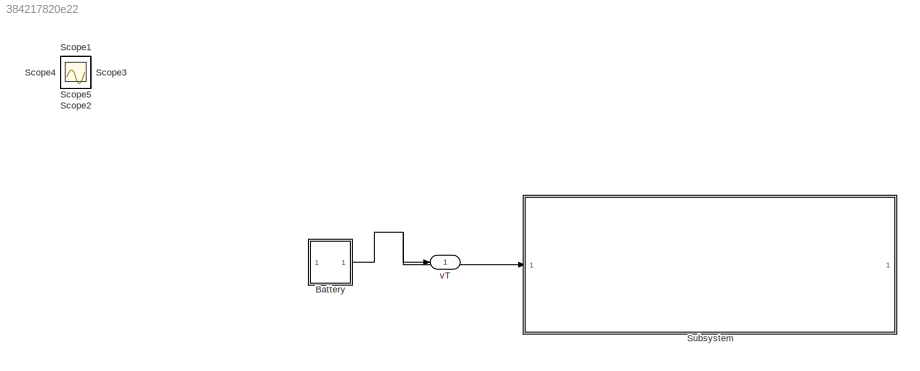
MODEL slx_384217820e22
KIND model
CONFIG AbsTol = auto
CONFIG EnableMultiTasking = off
CONFIG FixedStep = auto
CONFIG MaxStep = auto
CONFIG MinStep = auto
CONFIG RelTol = 1e-3
CONFIG SampleTimeConstraint = Unconstrained
CONFIG SolverName = VariableStepAuto
CONFIG StartTime = 0.0
CONFIG StopTime = 30
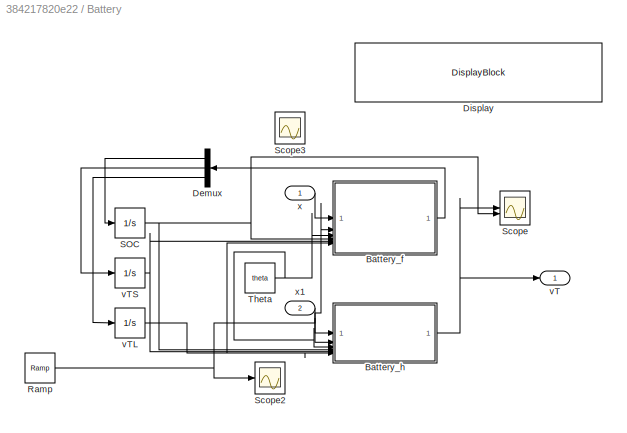
BLOCK [SubSystem] Battery
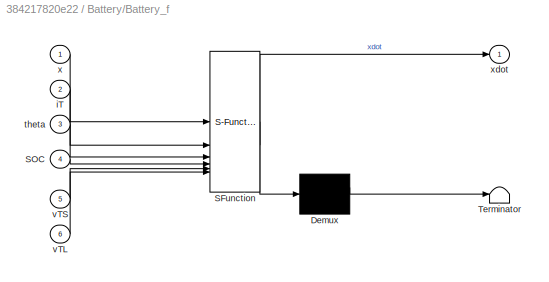
BLOCK [SubSystem] Battery/Battery_f
  ErrorFcn = Stateflow.Translate.translate
  PermitHierarchicalResolution = ExplicitOnly
  SFBlockType = MATLAB Function
  TreatAsAtomicUnit = on
BLOCK [Demux] Battery/Battery_f/ Demux 
  Outputs = 1
BLOCK [S-Function] Battery/Battery_f/ SFunction 
  EnableBusSupport = on
  FunctionName = sf_sfun
  PortCounts = [6 2]
  SFcnIsStateOwnerBlock = off
  SFunctionDeploymentMode = off
  Tag = Stateflow S-Function 2
BLOCK [Terminator] Battery/Battery_f/ Terminator 
BLOCK [Inport] Battery/Battery_f/SOC
  Port = 4
BLOCK [Inport] Battery/Battery_f/iT
  Port = 2
BLOCK [Inport] Battery/Battery_f/theta
  Port = 3
BLOCK [Inport] Battery/Battery_f/vTL
  Port = 6
BLOCK [Inport] Battery/Battery_f/vTS
  Port = 5
BLOCK [Inport] Battery/Battery_f/x
BLOCK [Outport] Battery/Battery_f/xdot
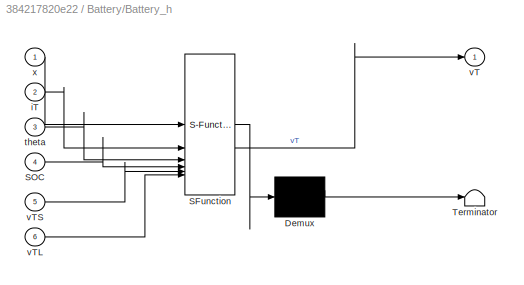
BLOCK [SubSystem] Battery/Battery_h
  ErrorFcn = Stateflow.Translate.translate
  PermitHierarchicalResolution = ExplicitOnly
  SFBlockType = MATLAB Function
  TreatAsAtomicUnit = on
BLOCK [Demux] Battery/Battery_h/ Demux 
  Outputs = 1
BLOCK [S-Function] Battery/Battery_h/ SFunction 
  EnableBusSupport = on
  FunctionName = sf_sfun
  PortCounts = [6 2]
  SFcnIsStateOwnerBlock = off
  SFunctionDeploymentMode = off
  Tag = Stateflow S-Function 1
BLOCK [Terminator] Battery/Battery_h/ Terminator 
BLOCK [Inport] Battery/Battery_h/SOC
  Port = 4
BLOCK [Inport] Battery/Battery_h/iT
  Port = 2
BLOCK [Inport] Battery/Battery_h/theta
  Port = 3
BLOCK [Outport] Battery/Battery_h/vT
BLOCK [Inport] Battery/Battery_h/vTL
  Port = 6
BLOCK [Inport] Battery/Battery_h/vTS
  Port = 5
BLOCK [Inport] Battery/Battery_h/x
BLOCK [Demux] Battery/Demux
  NameLocation = top
  Outputs = 3
BLOCK [DisplayBlock] Battery/Display
  Layout = Fill available space
  Transparency = 1
BLOCK [Reference] Battery/Ramp  REF=simulink/Sources/Ramp
  SourceBlock = simulink/Sources/Ramp
  SourceType = Ramp
BLOCK [Integrator] Battery/SOC
  InitialCondition = 0.4
BLOCK [Scope] Battery/Scope
  Floating = off
  NumInputPorts = 3
  ScopeSpecificationString = Simulink.scopes.TimeScopeBlockCfg('CurrentConfiguration', extmgr.ConfigurationSet(extmgr.Configuration('Core','General UI',true),extmgr.Configuration('Core','Source UI',true),extmgr.Configuration('Sources','WiredSimulink',true),extmgr.Configuration('Visuals','Time Domain',true,'SerializedDisplays',{struct('MinYLimReal','-1.25485','MaxYLimReal','1.8646','YLabelReal','','MinYLimMag','0.00000','MaxYL...<+1432ch>
BLOCK [Scope] Battery/Scope2
  Floating = off
  NumInputPorts = 1
  ScopeSpecificationString = Simulink.scopes.TimeScopeBlockCfg('CurrentConfiguration', extmgr.ConfigurationSet(extmgr.Configuration('Core','General UI',true),extmgr.Configuration('Core','Source UI',true),extmgr.Configuration('Sources','WiredSimulink',true,'DataLoggingVariableName','ScopeData2'),extmgr.Configuration('Visuals','Time Domain',true,'SerializedDisplays',{struct('MinYLimReal','-37.5','MaxYLimReal','337.5','YLabelRea...<+1473ch>
BLOCK [Scope] Battery/Scope3
  Floating = off
  NumInputPorts = 1
  ScopeSpecificationString = Simulink.scopes.TimeScopeBlockCfg('CurrentConfiguration', extmgr.ConfigurationSet(extmgr.Configuration('Core','General UI',true),extmgr.Configuration('Core','Source UI',true),extmgr.Configuration('Sources','WiredSimulink',true,'DataLoggingVariableName','ScopeData3'),extmgr.Configuration('Visuals','Time Domain',true,'SerializedDisplays',{struct('MinYLimReal','-1.00000','MaxYLimReal','1.00000','YLab...<+1492ch>
BLOCK [Constant] Battery/Theta
  Value = theta
BLOCK [Outport] Battery/vT
BLOCK [Integrator] Battery/vTL
  InitialCondition = 0.01
BLOCK [Integrator] Battery/vTS
  InitialCondition = 0.01
BLOCK [Inport] Battery/x
BLOCK [Inport] Battery/x1
  Port = 2
BLOCK [Scope] Scope
  Floating = off
  IOType = viewer
  NumInputPorts = 1
  ScopeSpecificationString = Simulink.scopes.TimeScopeBlockCfg('CurrentConfiguration', extmgr.ConfigurationSet(extmgr.Configuration('Core','General UI',true),extmgr.Configuration('Core','Source UI',true),extmgr.Configuration('Sources','WiredSimulink',true,'DataLoggingVariableName','ScopeData4'),extmgr.Configuration('Visuals','Time Domain',true,'SerializedDisplays',{struct('MinYLimReal','1.57208','MaxYLimReal','1.57232','YLabe...<+1450ch>
BLOCK [Scope] Scope1
  Floating = off
  IOType = viewer
  NumInputPorts = 1
  ScopeSpecificationString = Simulink.scopes.TimeScopeBlockCfg('CurrentConfiguration', extmgr.ConfigurationSet(extmgr.Configuration('Core','General UI',true),extmgr.Configuration('Core','Source UI',true),extmgr.Configuration('Sources','WiredSimulink',true,'DataLoggingVariableName','ScopeData1'),extmgr.Configuration('Visuals','Time Domain',true,'SerializedDisplays',{struct('MinYLimReal','-0.04228','MaxYLimReal','0.44914','YLab...<+1448ch>
BLOCK [Scope] Scope2
  Floating = off
  IOType = viewer
  NumInputPorts = 1
  ScopeSpecificationString = Simulink.scopes.TimeScopeBlockCfg('CurrentConfiguration', extmgr.ConfigurationSet(extmgr.Configuration('Core','General UI',true),extmgr.Configuration('Core','Source UI',true),extmgr.Configuration('Sources','WiredSimulink',true,'DataLoggingVariableName','ScopeData5'),extmgr.Configuration('Visuals','Time Domain',true,'SerializedDisplays',{struct('MinYLimReal','-0.00057','MaxYLimReal','-0.00033','YLa...<+1494ch>
BLOCK [Scope] Scope3
  Floating = off
  IOType = viewer
  NumInputPorts = 1
  ScopeSpecificationString = Simulink.scopes.TimeScopeBlockCfg('CurrentConfiguration', extmgr.ConfigurationSet(extmgr.Configuration('Core','General UI',true),extmgr.Configuration('Core','Source UI',true),extmgr.Configuration('Sources','WiredSimulink',true,'DataLoggingVariableName','ScopeData6'),extmgr.Configuration('Visuals','Time Domain',true,'SerializedDisplays',{struct('MinYLimReal','-1.25485','MaxYLimReal','1.8646','YLabe...<+1484ch>
BLOCK [Scope] Scope4
  Floating = off
  IOType = viewer
  NumInputPorts = 1
  ScopeSpecificationString = Simulink.scopes.TimeScopeBlockCfg('CurrentConfiguration', extmgr.ConfigurationSet(extmgr.Configuration('Core','General UI',true),extmgr.Configuration('Core','Source UI',true),extmgr.Configuration('Sources','WiredSimulink',true,'DataLoggingVariableName','ScopeData1'),extmgr.Configuration('Visuals','Time Domain',true,'SerializedDisplays',{struct('MinYLimReal','-0.14864','MaxYLimReal','1.43776','YLab...<+1451ch>
BLOCK [Scope] Scope5
  Floating = off
  IOType = viewer
  NumInputPorts = 1
  ScopeSpecificationString = Simulink.scopes.TimeScopeBlockCfg('CurrentConfiguration', extmgr.ConfigurationSet(extmgr.Configuration('Core','General UI',true),extmgr.Configuration('Core','Source UI',true),extmgr.Configuration('Sources','WiredSimulink',true,'DataLoggingVariableName','ScopeData2'),extmgr.Configuration('Visuals','Time Domain',true,'SerializedDisplays',{struct('MinYLimReal','-0.10134','MaxYLimReal','1.0121','YLabe...<+1447ch>
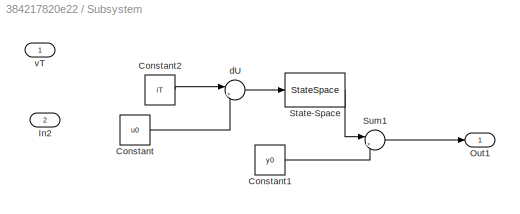
BLOCK [SubSystem] Subsystem
BLOCK [Constant] Subsystem/Constant
  Value = u0
BLOCK [Constant] Subsystem/Constant1
  Value = y0
BLOCK [Constant] Subsystem/Constant2
  Value = iT
BLOCK [Inport] Subsystem/In2
  Port = 2
BLOCK [Outport] Subsystem/Out1
BLOCK [StateSpace] Subsystem/State-Space
  A = A
  B = B
  C = C
  D = D
  InitialCondition = 0
BLOCK [Sum] Subsystem/Sum1
  Inputs = |++
BLOCK [Sum] Subsystem/dU
  Inputs = |+-
BLOCK [Inport] Subsystem/vT
BLOCK [Outport] vT
LINE Battery/Battery_f:1 -> Battery/Demux:1
NET Battery/Battery_h:1 -> Battery/Scope:1, Battery/vT:1
LINE Battery/Demux:1 -> Battery/SOC:1
LINE Battery/Demux:2 -> Battery/vTS:1
LINE Battery/Demux:3 -> Battery/vTL:1
NET Battery/Ramp:1 -> Battery/Battery_f:2, Battery/Battery_h:2, Battery/Scope2:1
NET Battery/SOC:1 -> Battery/Battery_f:4, Battery/Battery_h:4, Battery/Scope:2
NET Battery/Theta:1 -> Battery/Battery_f:3, Battery/Battery_h:3
NET Battery/vTL:1 -> Battery/Battery_f:6, Battery/Battery_h:6
NET Battery/vTS:1 -> Battery/Battery_f:5, Battery/Battery_h:5
LINE Battery/x1:1 -> Battery/Battery_h:1
LINE Battery/x:1 -> Battery/Battery_f:1
NET Battery:1 -> Subsystem:1, vT:1
LINE Subsystem/Constant1:1 -> Subsystem/Sum1:2
LINE Subsystem/Constant2:1 -> Subsystem/dU:1
LINE Subsystem/Constant:1 -> Subsystem/dU:2
LINE Subsystem/State-Space:1 -> Subsystem/Sum1:1
LINE Subsystem/Sum1:1 -> Subsystem/Out1:1
LINE Subsystem/dU:1 -> Subsystem/State-Space:1
note: NET lines group one-source signal fan-out (src -> all destinations, sorted); 1:1 wires keep LINE
CHART Battery/Battery_h states=1 transitions=1
  STATE_LABEL 'eML_blk_kernel()'
  STATE_LABEL 'SCRIPT:\nfunction vT = battery_h(x, iT, theta, SOC, vTS, vTL)\n%#codegen\n% x = [soc; vTS; vTL], theta is 22x1 parameter vector\n\nsoc = SOC;\nvTS = vTS;\nvTL = vTL;\n\n% ---- unpack theta ----\nRS_a = theta(2);  RS_b = theta(3);  RS_c = theta(4);\n\nv0 = theta(17); v1 = theta(18); v2 = theta(19);\nv3 = theta(20); v4 = theta(21); v5 = theta(22);\n\n% ---- compute ----\nRS  = RS_a * exp(RS_b * soc) + RS_c;\n\nvoc = ...<+93ch>'
CHART Battery/Battery_f states=1 transitions=1
  STATE_LABEL 'eML_blk_kernel()'
  STATE_LABEL 'SCRIPT:\nfunction xdot = battery_f(x, iT, theta, SOC, vTS, vTL)\n%#codegen\n% x = [soc; vTS; vTL], theta is 22x1 parameter vector\n\nsoc = SOC;\nvTS = vTS;\nvTL = vTL;\n\n% ---- unpack theta ----\nCBat  = theta(1);\n\nRS_a  = theta(2);  RS_b  = theta(3);  RS_c  = theta(4);\n\nRTS_a = theta(5);  RTS_b = theta(6);  RTS_c = theta(7);\nCTS_a = theta(8);  CTS_b = theta(9);  CTS_c = theta(10);\n\nRTL_a = theta(11); RTL_...<+693ch>'
CHART  states=0 transitions=0
CHART  states=0 transitions=0
